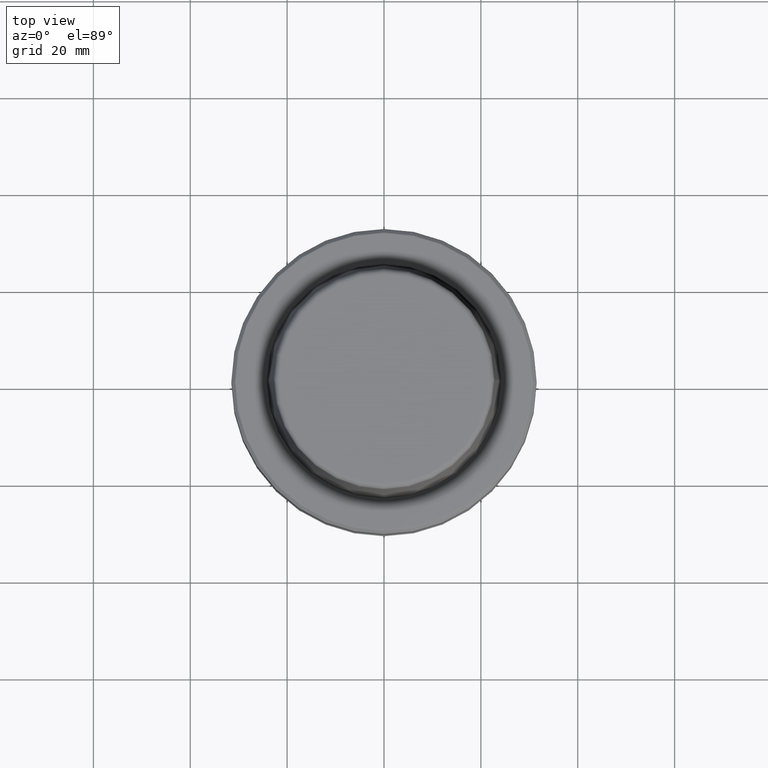
[diagram: clean part render]
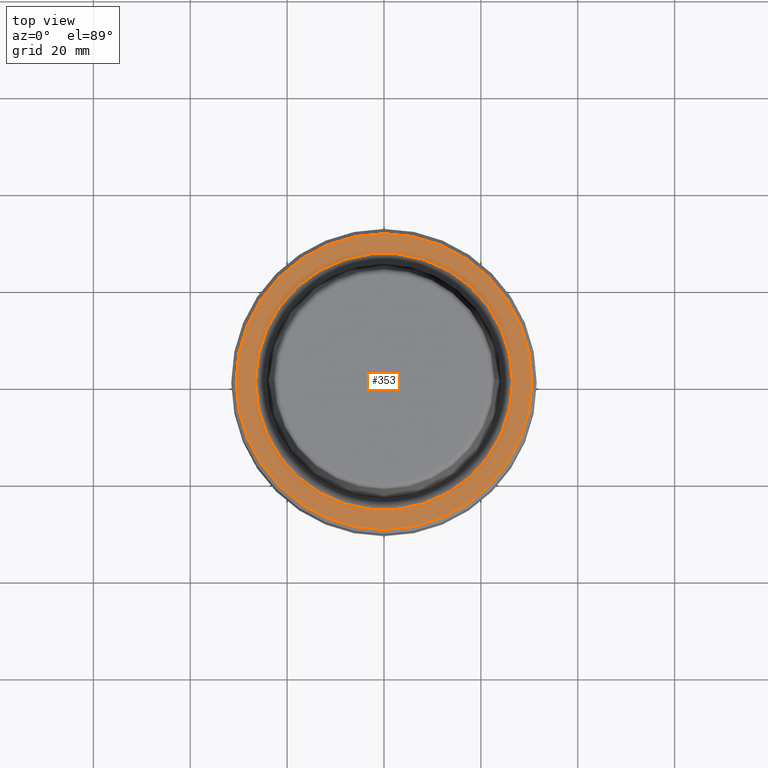
[diagram: same view with one face highlighted and labeled with its STEP entity id]
A machine part, top view. The second image highlights one B-rep face of the part: STEP entity #353.
In plain terms, the highlighted planar face has unit normal (0, 0, -1).
Its self-contained STEP definition (entity closure, byte-faithful):
#183 = AXIS2_PLACEMENT_3D ( 'NONE', #740, #572, #774 ) ;
#184 = CARTESIAN_POINT ( 'NONE',  ( -26.52499999999999900, 3.248375634738354300E-015, 0.0000000000000000000 ) ) ;
#225 = AXIS2_PLACEMENT_3D ( 'NONE', #2567, #900, #453 ) ;
#353 = ADVANCED_FACE ( 'NONE', ( #2979, #520 ), #540, .F. ) ;
#412 = AXIS2_PLACEMENT_3D ( 'NONE', #2939, #1724, #606 ) ;
#453 = DIRECTION ( 'NONE',  ( 1.000000000000000000, 0.0000000000000000000, 0.0000000000000000000 ) ) ;
#520 = FACE_OUTER_BOUND ( 'NONE', #1652, .T. ) ;
#526 = ORIENTED_EDGE ( 'NONE', *, *, #1172, .T. ) ;
#540 = PLANE ( 'NONE',  #183 ) ;
#572 = DIRECTION ( 'NONE',  ( 0.0000000000000000000, 0.0000000000000000000, -1.000000000000000000 ) ) ;
#583 = AXIS2_PLACEMENT_3D ( 'NONE', #1270, #2888, #1502 ) ;
#606 = DIRECTION ( 'NONE',  ( 1.000000000000000000, 0.0000000000000000000, 0.0000000000000000000 ) ) ;
#740 = CARTESIAN_POINT ( 'NONE',  ( 0.0000000000000000000, 26.52499999999999900, -1.111307226797642000E-015 ) ) ;
#755 = EDGE_CURVE ( 'NONE', #2494, #1221, #2754, .T. ) ;
#756 = CIRCLE ( 'NONE', #583, 26.52499999999999900 ) ;
#774 = DIRECTION ( 'NONE',  ( -1.000000000000000000, 0.0000000000000000000, -0.0000000000000000000 ) ) ;
#803 = AXIS2_PLACEMENT_3D ( 'NONE', #2756, #1369, #2976 ) ;
#900 = DIRECTION ( 'NONE',  ( -0.0000000000000000000, -0.0000000000000000000, 1.000000000000000000 ) ) ;
#1070 = CARTESIAN_POINT ( 'NONE',  ( 30.53431457505076100, 0.0000000000000000000, 0.0000000000000000000 ) ) ;
#1156 = ORIENTED_EDGE ( 'NONE', *, *, #2386, .F. ) ;
#1172 = EDGE_CURVE ( 'NONE', #1221, #2494, #2751, .T. ) ;
#1221 = VERTEX_POINT ( 'NONE', #2733 ) ;
#1232 = CARTESIAN_POINT ( 'NONE',  ( 26.52499999999999900, 0.0000000000000000000, 0.0000000000000000000 ) ) ;
#1270 = CARTESIAN_POINT ( 'NONE',  ( 0.0000000000000000000, 0.0000000000000000000, 0.0000000000000000000 ) ) ;
#1272 = CIRCLE ( 'NONE', #803, 26.52499999999999900 ) ;
#1369 = DIRECTION ( 'NONE',  ( -0.0000000000000000000, -0.0000000000000000000, 1.000000000000000000 ) ) ;
#1374 = VERTEX_POINT ( 'NONE', #184 ) ;
#1502 = DIRECTION ( 'NONE',  ( 1.000000000000000000, 0.0000000000000000000, 0.0000000000000000000 ) ) ;
#1652 = EDGE_LOOP ( 'NONE', ( #2421, #526 ) ) ;
#1724 = DIRECTION ( 'NONE',  ( -0.0000000000000000000, -0.0000000000000000000, 1.000000000000000000 ) ) ;
#2123 = EDGE_LOOP ( 'NONE', ( #1156, #2375 ) ) ;
#2202 = EDGE_CURVE ( 'NONE', #1374, #2309, #1272, .T. ) ;
#2309 = VERTEX_POINT ( 'NONE', #1232 ) ;
#2375 = ORIENTED_EDGE ( 'NONE', *, *, #2202, .F. ) ;
#2386 = EDGE_CURVE ( 'NONE', #2309, #1374, #756, .T. ) ;
#2421 = ORIENTED_EDGE ( 'NONE', *, *, #755, .T. ) ;
#2494 = VERTEX_POINT ( 'NONE', #1070 ) ;
#2567 = CARTESIAN_POINT ( 'NONE',  ( 0.0000000000000000000, 0.0000000000000000000, 0.0000000000000000000 ) ) ;
#2733 = CARTESIAN_POINT ( 'NONE',  ( -30.53431457505076100, 3.756694181974138600E-015, 0.0000000000000000000 ) ) ;
#2751 = CIRCLE ( 'NONE', #412, 30.53431457505076100 ) ;
#2754 = CIRCLE ( 'NONE', #225, 30.53431457505076100 ) ;
#2756 = CARTESIAN_POINT ( 'NONE',  ( 0.0000000000000000000, 0.0000000000000000000, 0.0000000000000000000 ) ) ;
#2888 = DIRECTION ( 'NONE',  ( -0.0000000000000000000, -0.0000000000000000000, 1.000000000000000000 ) ) ;
#2939 = CARTESIAN_POINT ( 'NONE',  ( 0.0000000000000000000, 0.0000000000000000000, 0.0000000000000000000 ) ) ;
#2976 = DIRECTION ( 'NONE',  ( 1.000000000000000000, 0.0000000000000000000, 0.0000000000000000000 ) ) ;
#2979 = FACE_BOUND ( 'NONE', #2123, .T. ) ;